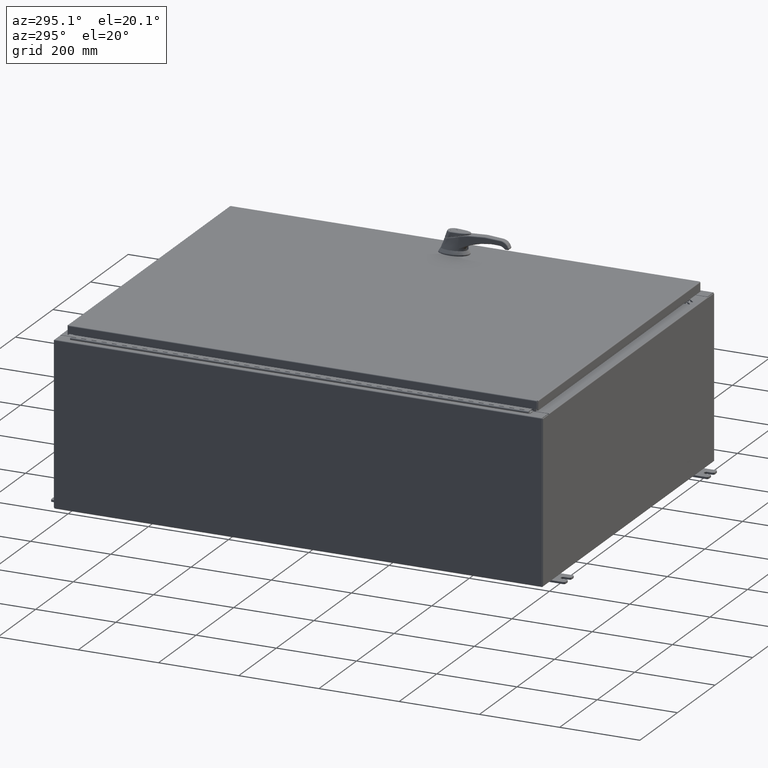
[diagram: clean part render]
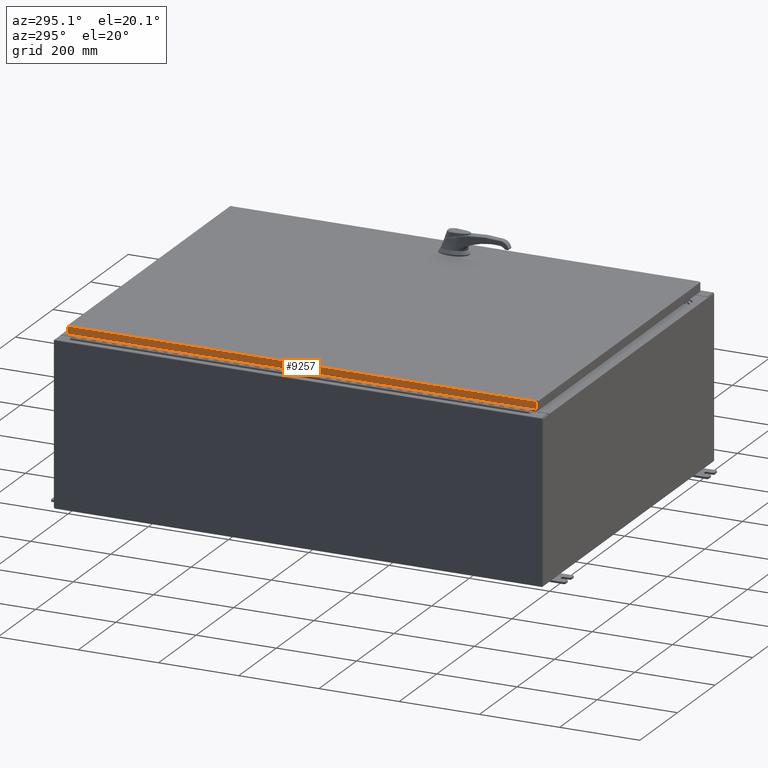
[diagram: same view with one face highlighted and labeled with its STEP entity id]
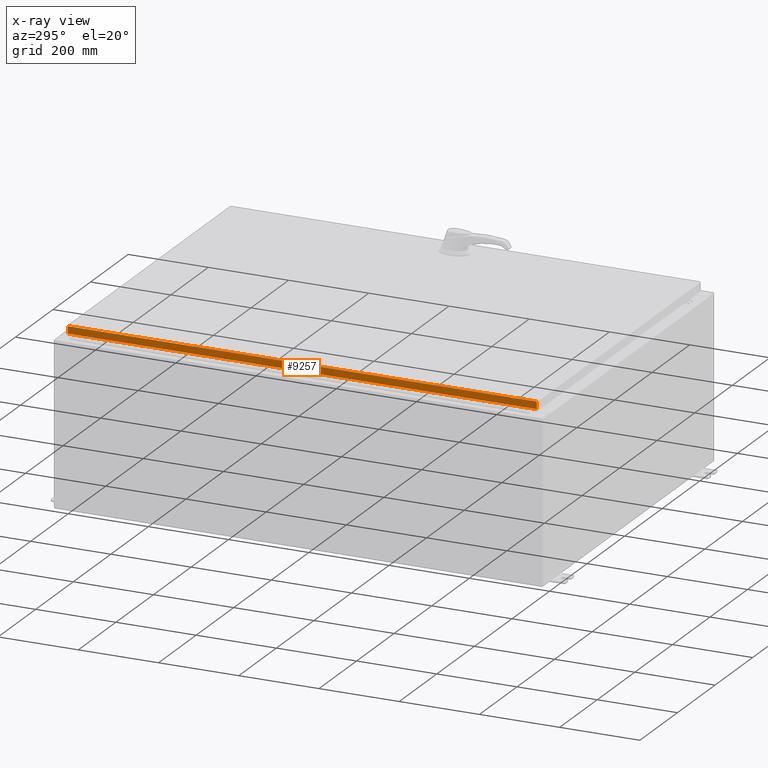
[diagram: x-ray of the same camera — body ghosted, the highlighted face saturated]
A machine part, auxiliary view. The second image highlights one B-rep face of the part: STEP entity #9257.
The next image is the same camera in x-ray: the body ghosted, the highlighted face saturated — about 0% of this face is hidden behind the body in this view.
In plain terms, the highlighted planar face has unit normal (1, -0, -0).
Its self-contained STEP definition (entity closure, byte-faithful):
#5317 = EDGE_CURVE ( 'NONE', #24607, #12860, #54079, .T. ) ;
#7236 = VERTEX_POINT ( 'NONE', #83146 ) ;
#9257 = ADVANCED_FACE ( 'NONE', ( #130886 ), #13143, .F. ) ;
#12860 = VERTEX_POINT ( 'NONE', #127593 ) ;
#13115 = VECTOR ( 'NONE', #119108, 39.37007874015748100 ) ;
#13143 = PLANE ( 'NONE',  #74270 ) ;
#16702 = LINE ( 'NONE', #78761, #123855 ) ;
#21504 = ORIENTED_EDGE ( 'NONE', *, *, #75345, .F. ) ;
#24607 = VERTEX_POINT ( 'NONE', #108311 ) ;
#24629 = ORIENTED_EDGE ( 'NONE', *, *, #72815, .F. ) ;
#25244 = CARTESIAN_POINT ( 'NONE',  ( -17.07799999999999900, -23.00515786437627200, -0.07469999999999976700 ) ) ;
#44385 = DIRECTION ( 'NONE',  ( -3.034122441942816500E-015, 0.0000000000000000000, -1.000000000000000000 ) ) ;
#45593 = ORIENTED_EDGE ( 'NONE', *, *, #69255, .T. ) ;
#53021 = VECTOR ( 'NONE', #108852, 39.37007874015748100 ) ;
#54079 = LINE ( 'NONE', #119979, #133664 ) ;
#54537 = ORIENTED_EDGE ( 'NONE', *, *, #5317, .F. ) ;
#56702 = CARTESIAN_POINT ( 'NONE',  ( -17.07799999999999600, 23.00515786437627200, 2.127217154807312100E-013 ) ) ;
#57792 = DIRECTION ( 'NONE',  ( -9.463403459476019000E-017, -1.000000000000000000, 1.419510518921414800E-016 ) ) ;
#69255 = EDGE_CURVE ( 'NONE', #24607, #7236, #90385, .T. ) ;
#72815 = EDGE_CURVE ( 'NONE', #128657, #7236, #16702, .T. ) ;
#74270 = AXIS2_PLACEMENT_3D ( 'NONE', #96046, #106514, #44385 ) ;
#75345 = EDGE_CURVE ( 'NONE', #12860, #128657, #95790, .T. ) ;
#78761 = CARTESIAN_POINT ( 'NONE',  ( -17.07800000000000300, -23.09400000000000100, -0.7949999999999997100 ) ) ;
#83146 = CARTESIAN_POINT ( 'NONE',  ( -17.07799999999999600, 23.00515786437627600, -0.7949999999999941600 ) ) ;
#90385 = LINE ( 'NONE', #56702, #53021 ) ;
#95790 = LINE ( 'NONE', #25244, #13115 ) ;
#96046 = CARTESIAN_POINT ( 'NONE',  ( -17.07799999999999600, 1.616160042809321200E-015, 5.207755671951099000E-014 ) ) ;
#100060 = DIRECTION ( 'NONE',  ( 9.463403459476099200E-017, 1.000000000000000000, 1.212498568245375300E-016 ) ) ;
#106514 = DIRECTION ( 'NONE',  ( 1.000000000000000000, -9.463403459476060900E-017, -3.034122441942816500E-015 ) ) ;
#108311 = CARTESIAN_POINT ( 'NONE',  ( -17.07799999999999600, 23.00515786437627200, -0.08770000000000659200 ) ) ;
#108852 = DIRECTION ( 'NONE',  ( -3.034122441942816100E-015, 6.982962677686267500E-015, -1.000000000000000000 ) ) ;
#119108 = DIRECTION ( 'NONE',  ( -3.034122441942816100E-015, 6.982962677686267500E-015, -1.000000000000000000 ) ) ;
#119979 = CARTESIAN_POINT ( 'NONE',  ( -17.07799999999999900, -23.09400000000000100, -0.08770000000000004200 ) ) ;
#122032 = EDGE_LOOP ( 'NONE', ( #54537, #45593, #24629, #21504 ) ) ;
#123855 = VECTOR ( 'NONE', #100060, 39.37007874015748100 ) ;
#127593 = CARTESIAN_POINT ( 'NONE',  ( -17.07799999999999900, -23.00515786437626900, -0.08770000000000334500 ) ) ;
#128657 = VERTEX_POINT ( 'NONE', #131613 ) ;
#130886 = FACE_OUTER_BOUND ( 'NONE', #122032, .T. ) ;
#131613 = CARTESIAN_POINT ( 'NONE',  ( -17.07800000000000300, -23.00515786437626900, -0.7949999999999996000 ) ) ;
#133664 = VECTOR ( 'NONE', #57792, 39.37007874015748100 ) ;